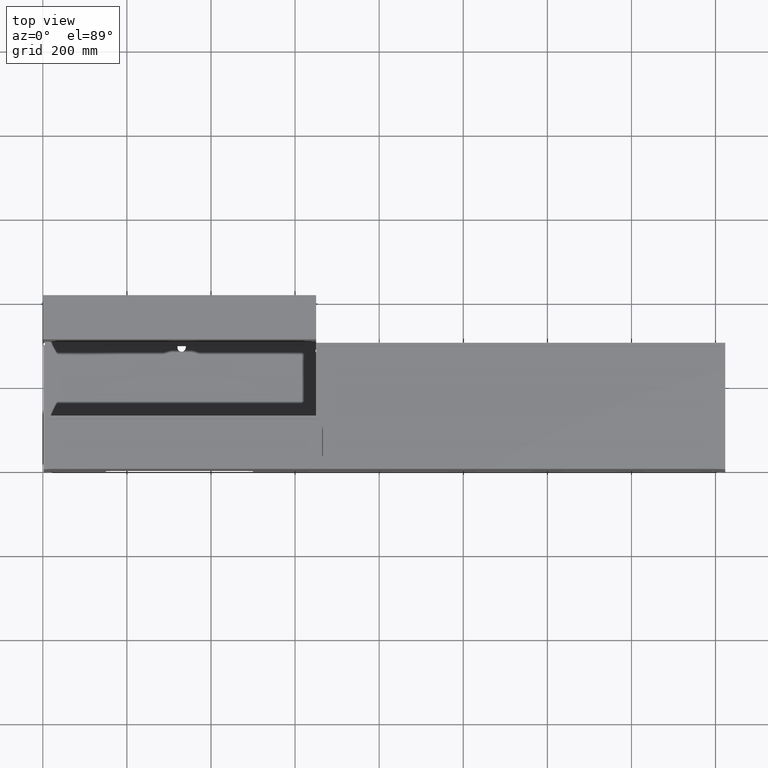
[diagram: clean part render]
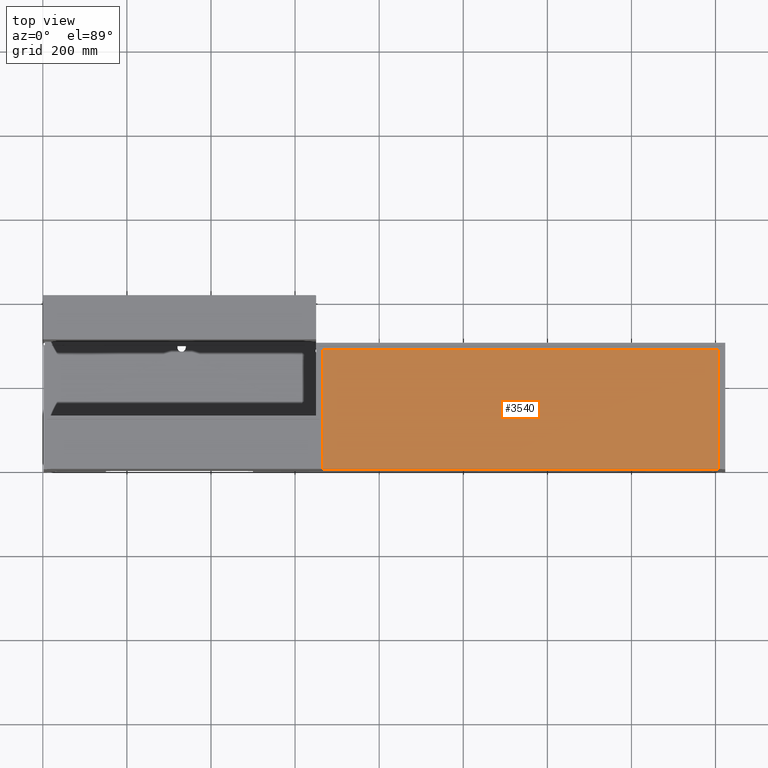
[diagram: same view with one face highlighted and labeled with its STEP entity id]
A machine part, top view. The second image highlights one B-rep face of the part: STEP entity #3540.
In plain terms, the highlighted planar face has unit normal (0, 0, -1).
Its self-contained STEP definition (entity closure, byte-faithful):
#198 = VECTOR ( 'NONE', #8053, 1000.000000000000000 ) ;
#1318 = VECTOR ( 'NONE', #5264, 1000.000000000000000 ) ;
#1335 = VECTOR ( 'NONE', #1400, 1000.000000000000000 ) ;
#1400 = DIRECTION ( 'NONE',  ( 1.000000000000000000, 0.0000000000000000000, 0.0000000000000000000 ) ) ;
#1421 = CARTESIAN_POINT ( 'NONE',  ( 665.9999999999998863, 0.0000000000000000000, -1.000000000000000888 ) ) ;
#1426 = LINE ( 'NONE', #1421, #1335 ) ;
#2193 = CARTESIAN_POINT ( 'NONE',  ( 1607.000000000000000, 1233.089793802907934, -1.000000000000000888 ) ) ;
#2287 = EDGE_CURVE ( 'NONE', #2416, #8494, #5361, .T. ) ;
#2416 = VERTEX_POINT ( 'NONE', #2788 ) ;
#2637 = EDGE_CURVE ( 'NONE', #8494, #3202, #1426, .T. ) ;
#2788 = CARTESIAN_POINT ( 'NONE',  ( 665.9999999999998863, 284.0000000000000568, -1.000000000000000888 ) ) ;
#2941 = ORIENTED_EDGE ( 'NONE', *, *, #10877, .F. ) ;
#3202 = VERTEX_POINT ( 'NONE', #15729 ) ;
#3540 = ADVANCED_FACE ( 'NONE', ( #18387 ), #8309, .F. ) ;
#4547 = DIRECTION ( 'NONE',  ( 1.000000000000000000, -0.0000000000000000000, 0.0000000000000000000 ) ) ;
#5264 = DIRECTION ( 'NONE',  ( -0.0000000000000000000, -1.000000000000000000, -0.0000000000000000000 ) ) ;
#5270 = CARTESIAN_POINT ( 'NONE',  ( 665.9999999999998863, 1233.089793802907934, -1.000000000000000888 ) ) ;
#5361 = LINE ( 'NONE', #5270, #1318 ) ;
#7867 = VECTOR ( 'NONE', #4547, 1000.000000000000000 ) ;
#8053 = DIRECTION ( 'NONE',  ( -0.0000000000000000000, -1.000000000000000000, -0.0000000000000000000 ) ) ;
#8309 = PLANE ( 'NONE',  #13671 ) ;
#8494 = VERTEX_POINT ( 'NONE', #15743 ) ;
#9131 = EDGE_CURVE ( 'NONE', #2416, #17322, #11874, .T. ) ;
#10713 = DIRECTION ( 'NONE',  ( 0.0000000000000000000, 0.0000000000000000000, -1.000000000000000000 ) ) ;
#10877 = EDGE_CURVE ( 'NONE', #17322, #3202, #15454, .T. ) ;
#11874 = LINE ( 'NONE', #17818, #7867 ) ;
#13102 = EDGE_LOOP ( 'NONE', ( #19152, #16177, #15905, #2941 ) ) ;
#13671 = AXIS2_PLACEMENT_3D ( 'NONE', #16249, #10713, #15393 ) ;
#15393 = DIRECTION ( 'NONE',  ( -1.000000000000000000, 0.0000000000000000000, -0.0000000000000000000 ) ) ;
#15454 = LINE ( 'NONE', #2193, #198 ) ;
#15701 = CARTESIAN_POINT ( 'NONE',  ( 1607.000000000000000, 284.0000000000000568, -1.000000000000000888 ) ) ;
#15729 = CARTESIAN_POINT ( 'NONE',  ( 1607.000000000000000, 0.0000000000000000000, -1.000000000000000888 ) ) ;
#15743 = CARTESIAN_POINT ( 'NONE',  ( 665.9999999999998863, 0.0000000000000000000, -1.000000000000000888 ) ) ;
#15905 = ORIENTED_EDGE ( 'NONE', *, *, #2637, .T. ) ;
#16177 = ORIENTED_EDGE ( 'NONE', *, *, #2287, .T. ) ;
#16249 = CARTESIAN_POINT ( 'NONE',  ( 665.9999999999998863, 1233.089793802907934, -1.000000000000000888 ) ) ;
#17322 = VERTEX_POINT ( 'NONE', #15701 ) ;
#17818 = CARTESIAN_POINT ( 'NONE',  ( 665.9999999999998863, 284.0000000000000568, -1.000000000000000888 ) ) ;
#18387 = FACE_OUTER_BOUND ( 'NONE', #13102, .T. ) ;
#19152 = ORIENTED_EDGE ( 'NONE', *, *, #9131, .F. ) ;